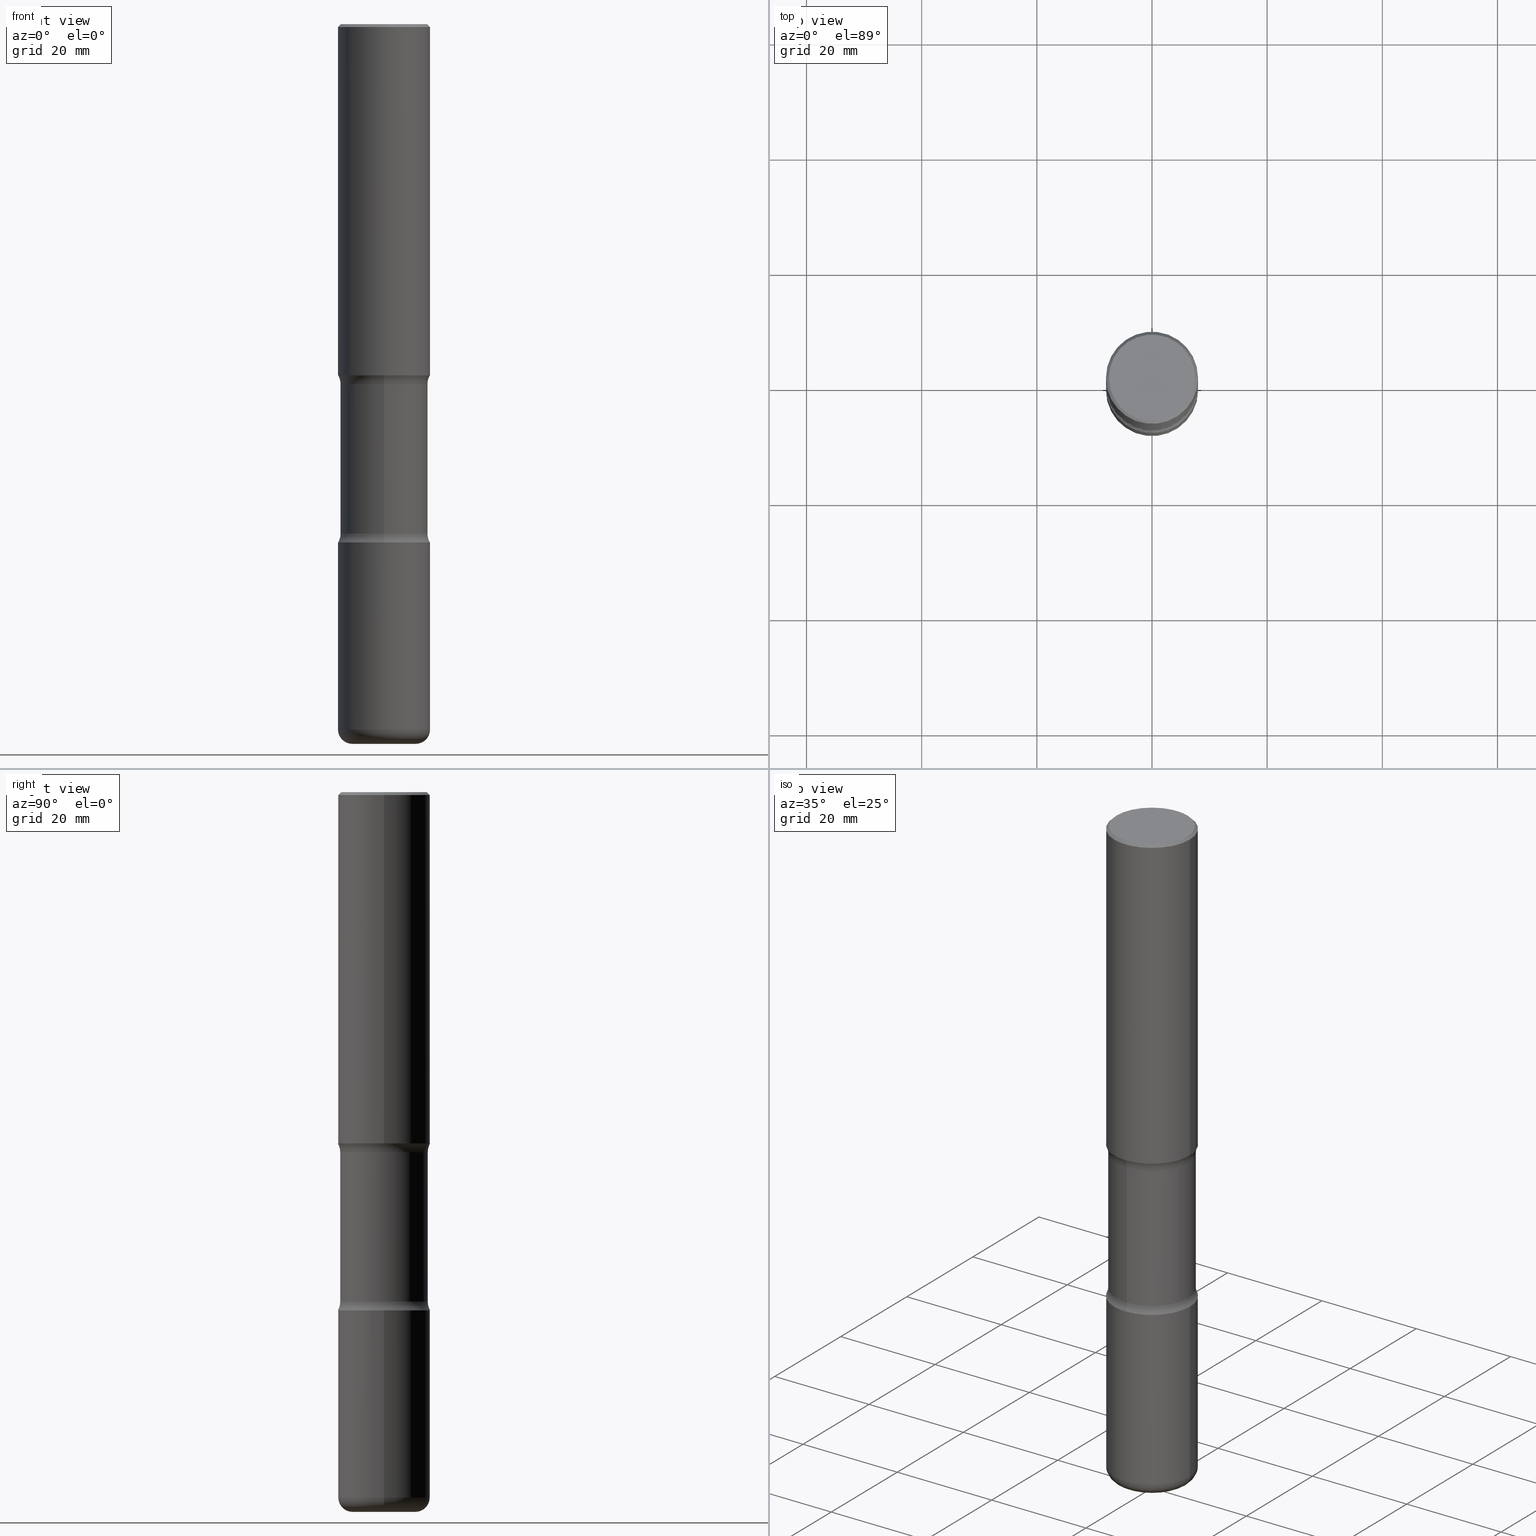
[diagram: canonical four-view strip — front | top / right | iso, engineering-drawing reading convention]
A machine part, canonical four-view strip (front | top / right | iso — engineering-drawing reading convention). The complete STEP part file that produces these views, byte-faithful:
ISO-10303-21;
HEADER;
FILE_DESCRIPTION (( 'STEP AP203' ),
    '1' );
FILE_NAME ('47728.STEP',
    '2024-03-02T08:01:05',
    ( '' ),
    ( '' ),
    'SwSTEP 2.0',
    'SolidWorks 2023',
    '' );
FILE_SCHEMA (( 'CONFIG_CONTROL_DESIGN' ));
ENDSEC;

DATA;
#1 = DATE_AND_TIME ( #225, #57 ) ;
#2 = LENGTH_MEASURE_WITH_UNIT ( LENGTH_MEASURE( 0.02539999999999999897 ), #184 );
#3 = AXIS2_PLACEMENT_3D ( 'NONE', #388, #259, #338 ) ;
#4 = EDGE_CURVE ( 'NONE', #560, #476, #472, .T. ) ;
#5 = VECTOR ( 'NONE', #98, 39.37007874015748143 ) ;
#6 = ORIENTED_EDGE ( 'NONE', *, *, #440, .F. ) ;
#7 = CARTESIAN_POINT ( 'NONE',  ( 5.793698634558417209E-29, -8.498759905613550858E-15, -2.401600000000000623 ) ) ;
#8 = ADVANCED_FACE ( 'NONE', ( #447 ), #330, .F. ) ;
#9 = CARTESIAN_POINT ( 'NONE',  ( 0.3149500000000000077, -2.199284095337289871E-15, 1.535751875536930130E-29 ) ) ;
#10 = ORIENTED_EDGE ( 'NONE', *, *, #533, .T. ) ;
#11 = DIRECTION ( 'NONE',  ( 6.982962677686265922E-15, 1.000000000000000000, -3.469564049740288825E-15 ) ) ;
#12 = DIRECTION ( 'NONE',  ( -2.445468806185136877E-29, 3.491481338843145188E-15, 1.000000000000000000 ) ) ;
#13 = DIRECTION ( 'NONE',  ( 1.000000000000000000, -6.860497997771530774E-15, 4.842017608840796657E-29 ) ) ;
#14 = AXIS2_PLACEMENT_3D ( 'NONE', #94, #469, #91 ) ;
#15 = CARTESIAN_POINT ( 'NONE',  ( -2.160713844398058954E-15, -0.3149500000000126643, -3.543299999999999894 ) ) ;
#16 = ADVANCED_FACE ( 'NONE', ( #366 ), #322, .F. ) ;
#17 = SHAPE_DEFINITION_REPRESENTATION ( #56, #194 ) ;
#18 = CARTESIAN_POINT ( 'NONE',  ( 1.179425150535028983E-28, -1.683906534910660256E-14, -4.822899999999998855 ) ) ;
#19 = CC_DESIGN_PERSON_AND_ORGANIZATION_ASSIGNMENT ( #63, #116, ( #282 ) ) ;
#20 = VERTEX_POINT ( 'NONE', #554 ) ;
#21 = PERSON_AND_ORGANIZATION_ROLE ( 'design_supplier' ) ;
#22 = DIRECTION ( 'NONE',  ( -2.445468806185136877E-29, 3.491481338843145188E-15, 1.000000000000000000 ) ) ;
#23 = DIRECTION ( 'NONE',  ( 2.514961011121466661E-29, -3.391964546123646738E-15, -1.000000000000000000 ) ) ;
#24 = EDGE_CURVE ( 'NONE', #496, #136, #558, .T. ) ;
#25 = CLOSED_SHELL ( 'NONE', ( #331, #536, #298, #343, #380, #42 ) ) ;
#26 = AXIS2_PLACEMENT_3D ( 'NONE', #527, #524, #336 ) ;
#27 = VERTEX_POINT ( 'NONE', #135 ) ;
#28 = LINE ( 'NONE', #498, #145 ) ;
#29 = EDGE_CURVE ( 'NONE', #294, #496, #103, .T. ) ;
#30 = ORIENTED_EDGE ( 'NONE', *, *, #493, .T. ) ;
#31 = ORIENTED_EDGE ( 'NONE', *, *, #374, .T. ) ;
#32 = DIRECTION ( 'NONE',  ( -2.445468806185136877E-29, 3.491481338843145188E-15, 1.000000000000000000 ) ) ;
#33 = ORIENTED_EDGE ( 'NONE', *, *, #202, .F. ) ;
#34 = EDGE_LOOP ( 'NONE', ( #164, #523 ) ) ;
#35 = CARTESIAN_POINT ( 'NONE',  ( 5.873037884934225470E-29, -8.385141583365698841E-15, -2.401600000000000623 ) ) ;
#36 = VERTEX_POINT ( 'NONE', #205 ) ;
#37 = DIRECTION ( 'NONE',  ( 7.105427357601001859E-15, 1.000000000000000000, -3.491481338843145583E-15 ) ) ;
#38 = EDGE_LOOP ( 'NONE', ( #67, #401, #318, #386 ) ) ;
#39 = AXIS2_PLACEMENT_3D ( 'NONE', #465, #428, #463 ) ;
#40 = APPROVAL_PERSON_ORGANIZATION ( #221, #126, #439 ) ;
#41 = CARTESIAN_POINT ( 'NONE',  ( 4.890937612370289799E-31, -6.982962677686315028E-17, -0.02000000000000006981 ) ) ;
#42 = ADVANCED_FACE ( 'NONE', ( #340 ), #293, .T. ) ;
#43 = VERTEX_POINT ( 'NONE', #15 ) ;
#44 = DIRECTION ( 'NONE',  ( 1.000000000000000000, -6.982962677686265922E-15, 4.876176775795935793E-29 ) ) ;
#45 = CARTESIAN_POINT ( 'NONE',  ( 2.199284095337378223E-15, 0.3149499999999879063, -3.543300000000002115 ) ) ;
#46 = EDGE_CURVE ( 'NONE', #36, #107, #481, .T. ) ;
#47 = EDGE_CURVE ( 'NONE', #365, #43, #545, .T. ) ;
#48 = AXIS2_PLACEMENT_3D ( 'NONE', #531, #462, #242 ) ;
#49 = CARTESIAN_POINT ( 'NONE',  ( -0.3149500000000002853, -1.236736124223832383E-14, -3.543300000000000782 ) ) ;
#50 = CC_DESIGN_APPROVAL ( #228, ( #204 ) ) ;
#51 = ORIENTED_EDGE ( 'NONE', *, *, #46, .T. ) ;
#52 = PERSON_AND_ORGANIZATION_ROLE ( 'design_owner' ) ;
#53 =( NAMED_UNIT ( * ) SI_UNIT ( $, .STERADIAN. ) SOLID_ANGLE_UNIT ( ) );
#54 = DIRECTION ( 'NONE',  ( 2.514961011121466661E-29, -3.391964546123646738E-15, -1.000000000000000000 ) ) ;
#55 = AXIS2_PLACEMENT_3D ( 'NONE', #110, #200, #283 ) ;
#56 = PRODUCT_DEFINITION_SHAPE ( 'NONE', 'NONE',  #204 ) ;
#57 = LOCAL_TIME ( 3, 1, 5.000000000000000000, #449 ) ;
#58 = PERSON_AND_ORGANIZATION ( #517, #383 ) ;
#59 = DIRECTION ( 'NONE',  ( -6.982962677686265922E-15, -1.000000000000000000, 3.391964546123647133E-15 ) ) ;
#60 = PERSON_AND_ORGANIZATION_ROLE ( 'creator' ) ;
#61 = CARTESIAN_POINT ( 'NONE',  ( 2.199284095337349824E-15, 0.3149499999999919031, -2.401600000000001511 ) ) ;
#62 = ORIENTED_EDGE ( 'NONE', *, *, #305, .T. ) ;
#63 = PERSON_AND_ORGANIZATION ( #517, #383 ) ;
#64 = DIRECTION ( 'NONE',  ( 1.000000000000000000, -6.982962677686256455E-15, 0.000000000000000000 ) ) ;
#65 = CYLINDRICAL_SURFACE ( 'NONE', #453, 0.3149500000000002853 ) ;
#66 = CIRCLE ( 'NONE', #3, 0.2992000000000000215 ) ;
#67 = ORIENTED_EDGE ( 'NONE', *, *, #442, .F. ) ;
#68 = CONICAL_SURFACE ( 'NONE', #237, 0.3149499999999998967, 0.7853981633974460586 ) ;
#69 = CALENDAR_DATE ( 2024, 2, 3 ) ;
#70 = FACE_OUTER_BOUND ( 'NONE', #266, .T. ) ;
#71 = DIRECTION ( 'NONE',  ( 1.000000000000000000, -6.982962677686267499E-15, 4.876176775795936353E-29 ) ) ;
#72 = ADVANCED_FACE ( 'NONE', ( #500 ), #247, .T. ) ;
#73 = APPROVAL_DATE_TIME ( #287, #185 ) ;
#74 = EDGE_CURVE ( 'NONE', #79, #243, #306, .T. ) ;
#75 = DIRECTION ( 'NONE',  ( 2.438088387897960049E-29, -3.491481338843145188E-15, -1.000000000000000000 ) ) ;
#76 = TOROIDAL_SURFACE ( 'NONE', #269, 0.4242000000000002435, 0.1250000000000001943 ) ;
#77 = CIRCLE ( 'NONE', #211, 0.1250000000000000555 ) ;
#78 = DIRECTION ( 'NONE',  ( -2.445468806185136597E-29, 3.491481338843145583E-15, 1.000000000000000000 ) ) ;
#79 = VERTEX_POINT ( 'NONE', #186 ) ;
#80 = ORIENTED_EDGE ( 'NONE', *, *, #475, .F. ) ;
#81 = EDGE_LOOP ( 'NONE', ( #313, #254, #489, #321 ) ) ;
#82 = CARTESIAN_POINT ( 'NONE',  ( 8.516490035935592115E-29, -1.215929066758317818E-14, -3.482559259964995935 ) ) ;
#83 = DIRECTION ( 'NONE',  ( 1.000000000000000000, -6.982962677686268288E-15, 0.000000000000000000 ) ) ;
#84 = CARTESIAN_POINT ( 'NONE',  ( 1.203488563587890921E-28, -1.718262711284876708E-14, -4.921299999999998676 ) ) ;
#85 = CARTESIAN_POINT ( 'NONE',  ( 5.946459227533120264E-29, -8.704790342317601483E-15, -2.462340740035005471 ) ) ;
#86 = ADVANCED_FACE ( 'NONE', ( #319 ), #506, .T. ) ;
#87 = EDGE_CURVE ( 'NONE', #43, #27, #362, .T. ) ;
#88 = AXIS2_PLACEMENT_3D ( 'NONE', #214, #507, #423 ) ;
#89 = APPROVAL_PERSON_ORGANIZATION ( #106, #228, #171 ) ;
#90 = DIRECTION ( 'NONE',  ( 2.514961011121466661E-29, -3.391964546123646738E-15, -1.000000000000000000 ) ) ;
#91 = DIRECTION ( 'NONE',  ( -1.000000000000000000, 6.982962677686265922E-15, -4.876176775795935793E-29 ) ) ;
#92 = UNCERTAINTY_MEASURE_WITH_UNIT (LENGTH_MEASURE( 1.000000000000000082E-05 ), #273, 'distance_accuracy_value', 'NONE');
#93 = PRODUCT_RELATED_PRODUCT_CATEGORY ( 'detail', '', ( #226 ) ) ;
#94 = CARTESIAN_POINT ( 'NONE',  ( 2.059624841783563274E-15, 0.2949499999999998789, -1.023409652156634744E-15 ) ) ;
#95 = EDGE_LOOP ( 'NONE', ( #361, #256, #552, #503 ) ) ;
#96 = AXIS2_PLACEMENT_3D ( 'NONE', #549, #508, #486 ) ;
#97 = CIRCLE ( 'NONE', #357, 0.1250000000000001943 ) ;
#98 = DIRECTION ( 'NONE',  ( 0.7071067811865459074, -7.319954787623249734E-15, -0.7071067811865491270 ) ) ;
#99 = VECTOR ( 'NONE', #514, 39.37007874015748143 ) ;
#100 = DIRECTION ( 'NONE',  ( -6.982962677686267499E-15, -1.000000000000000000, 0.000000000000000000 ) ) ;
#101 = EDGE_LOOP ( 'NONE', ( #223, #172, #399, #213 ) ) ;
#102 = ORIENTED_EDGE ( 'NONE', *, *, #156, .F. ) ;
#103 = CIRCLE ( 'NONE', #208, 0.2949499999999998789 ) ;
#104 = AXIS2_PLACEMENT_3D ( 'NONE', #35, #495, #117 ) ;
#105 = VECTOR ( 'NONE', #32, 39.37007874015748143 ) ;
#106 = PERSON_AND_ORGANIZATION ( #517, #383 ) ;
#107 = VERTEX_POINT ( 'NONE', #61 ) ;
#108 = EDGE_CURVE ( 'NONE', #476, #519, #289, .T. ) ;
#109 = CARTESIAN_POINT ( 'NONE',  ( 4.372705008681123089E-29, -1.851821897664530113E-14, -3.543300000000000338 ) ) ;
#110 = CARTESIAN_POINT ( 'NONE',  ( 5.926195507050082324E-29, -8.733809143388656122E-15, -2.462340740035005471 ) ) ;
#111 = CARTESIAN_POINT ( 'NONE',  ( 4.890937612370289799E-31, -6.982962677686315028E-17, -0.02000000000000006981 ) ) ;
#112 = AXIS2_PLACEMENT_3D ( 'NONE', #538, #457, #376 ) ;
#113 = CIRCLE ( 'NONE', #373, 0.2165500000000004088 ) ;
#114 = LINE ( 'NONE', #121, #105 ) ;
#115 = ORIENTED_EDGE ( 'NONE', *, *, #156, .T. ) ;
#116 = PERSON_AND_ORGANIZATION_ROLE ( 'creator' ) ;
#117 = DIRECTION ( 'NONE',  ( 6.982962677686265922E-15, 1.000000000000000000, -3.391964546123647133E-15 ) ) ;
#118 = PLANE ( 'NONE',  #516 ) ;
#119 = ORIENTED_EDGE ( 'NONE', *, *, #502, .T. ) ;
#120 = DIRECTION ( 'NONE',  ( -2.445468806185136597E-29, 3.491481338843145583E-15, 1.000000000000000000 ) ) ;
#121 = CARTESIAN_POINT ( 'NONE',  ( 0.3149500000000002853, -2.199284095337291843E-15, 1.535751875536931531E-29 ) ) ;
#122 = AXIS2_PLACEMENT_3D ( 'NONE', #512, #173, #199 ) ;
#123 = EDGE_LOOP ( 'NONE', ( #284, #296 ) ) ;
#124 = DIRECTION ( 'NONE',  ( -2.445468806185136597E-29, 3.491481338843145583E-15, 1.000000000000000000 ) ) ;
#125 = ADVANCED_FACE ( 'NONE', ( #413 ), #518, .T. ) ;
#126 = APPROVAL ( #272, 'UNSPECIFIED' ) ;
#127 = DIRECTION ( 'NONE',  ( 1.000000000000000000, -6.982962677686265922E-15, 0.000000000000000000 ) ) ;
#128 = DIRECTION ( 'NONE',  ( 1.000000000000000000, -6.982962677686263555E-15, 0.000000000000000000 ) ) ;
#129 = TOROIDAL_SURFACE ( 'NONE', #444, 0.4242000000000001325, 0.1250000000000000555 ) ;
#130 = LOCAL_TIME ( 3, 1, 5.000000000000000000, #232 ) ;
#131 = CARTESIAN_POINT ( 'NONE',  ( -0.2165500000000004088, -1.530038505481810073E-14, -4.822899999999998855 ) ) ;
#132 = DIRECTION ( 'NONE',  ( -2.445468806185136597E-29, 3.491481338843145583E-15, 1.000000000000000000 ) ) ;
#133 = EDGE_CURVE ( 'NONE', #427, #36, #396, .T. ) ;
#134 = DIRECTION ( 'NONE',  ( -1.000000000000000000, 6.982962677686265922E-15, -4.883557194083112340E-29 ) ) ;
#135 = CARTESIAN_POINT ( 'NONE',  ( -2.106687422665607929E-15, -0.2992000000000121784, -3.482559259964995491 ) ) ;
#136 = VERTEX_POINT ( 'NONE', #301 ) ;
#137 = DATE_AND_TIME ( #354, #130 ) ;
#138 = CIRCLE ( 'NONE', #425, 0.2992000000000000215 ) ;
#139 = ADVANCED_FACE ( 'NONE', ( #258 ), #162, .T. ) ;
#140 = LINE ( 'NONE', #400, #5 ) ;
#141 = MANIFOLD_SOLID_BREP ( 'Body-Move/Copy2[1]', #430 ) ;
#142 = CARTESIAN_POINT ( 'NONE',  ( 0.000000000000000000, 0.000000000000000000, 0.000000000000000000 ) ) ;
#143 = ORIENTED_EDGE ( 'NONE', *, *, #334, .F. ) ;
#144 = CARTESIAN_POINT ( 'NONE',  ( 2.962172767874574494E-15, 0.4241999999999914173, -2.462340740035007247 ) ) ;
#145 = VECTOR ( 'NONE', #22, 39.37007874015748143 ) ;
#146 = VERTEX_POINT ( 'NONE', #285 ) ;
#147 = LINE ( 'NONE', #325, #168 ) ;
#148 = DATE_AND_TIME ( #497, #190 ) ;
#149 = DIRECTION ( 'NONE',  ( -2.445468806185136597E-29, 3.491481338843145583E-15, 1.000000000000000000 ) ) ;
#150 = AXIS2_PLACEMENT_3D ( 'NONE', #316, #231, #262 ) ;
#151 = ORIENTED_EDGE ( 'NONE', *, *, #475, .T. ) ;
#152 = CC_DESIGN_APPROVAL ( #185, ( #198 ) ) ;
#153 = DIRECTION ( 'NONE',  ( -2.445468806185136597E-29, 3.491481338843145583E-15, 1.000000000000000000 ) ) ;
#154 = EDGE_LOOP ( 'NONE', ( #438, #458, #62, #143 ) ) ;
#155 = FACE_OUTER_BOUND ( 'NONE', #101, .T. ) ;
#156 = EDGE_CURVE ( 'NONE', #496, #294, #511, .T. ) ;
#157 = AXIS2_PLACEMENT_3D ( 'NONE', #448, #187, #11 ) ;
#158 = CIRCLE ( 'NONE', #491, 0.3149499999999998967 ) ;
#159 = ORIENTED_EDGE ( 'NONE', *, *, #191, .F. ) ;
#160 = APPLICATION_CONTEXT ( 'configuration controlled 3d designs of mechanical parts and assemblies' ) ;
#161 = DIRECTION ( 'NONE',  ( 1.000000000000000000, -6.982962677686260400E-15, 0.000000000000000000 ) ) ;
#162 = CYLINDRICAL_SURFACE ( 'NONE', #122, 0.2992000000000000215 ) ;
#163 = DIRECTION ( 'NONE',  ( 2.514961011121466661E-29, -3.391964546123646738E-15, -1.000000000000000000 ) ) ;
#164 = ORIENTED_EDGE ( 'NONE', *, *, #502, .F. ) ;
#165 = DIRECTION ( 'NONE',  ( -1.000000000000000000, 7.105427357600994759E-15, 0.000000000000000000 ) ) ;
#166 = EDGE_CURVE ( 'NONE', #560, #20, #224, .T. ) ;
#167 = ORIENTED_EDGE ( 'NONE', *, *, #402, .T. ) ;
#168 = VECTOR ( 'NONE', #196, 39.37007874015748143 ) ;
#169 = CARTESIAN_POINT ( 'NONE',  ( 1.203488563587890921E-28, -1.718262711284876708E-14, -4.921299999999998676 ) ) ;
#170 = CARTESIAN_POINT ( 'NONE',  ( -0.3149499999999998967, 2.129454468560425784E-15, -0.02000000000000006981 ) ) ;
#171 = APPROVAL_ROLE ( '' ) ;
#172 = ORIENTED_EDGE ( 'NONE', *, *, #395, .T. ) ;
#173 = DIRECTION ( 'NONE',  ( 2.514961011121466661E-29, -3.391964546123646738E-15, -1.000000000000000000 ) ) ;
#174 = EDGE_LOOP ( 'NONE', ( #159, #264, #51, #432 ) ) ;
#175 = APPROVAL_DATE_TIME ( #1, #228 ) ;
#176 = ADVANCED_FACE ( 'NONE', ( #241 ), #65, .T. ) ;
#177 = EDGE_CURVE ( 'NONE', #519, #441, #28, .T. ) ;
#178 = ORIENTED_EDGE ( 'NONE', *, *, #74, .T. ) ;
#179 = AXIS2_PLACEMENT_3D ( 'NONE', #131, #37, #165 ) ;
#180 = CARTESIAN_POINT ( 'NONE',  ( 0.000000000000000000, 0.000000000000000000, 0.000000000000000000 ) ) ;
#181 = AXIS2_PLACEMENT_3D ( 'NONE', #215, #347, #267 ) ;
#182 = ADVANCED_FACE ( 'NONE', ( #372 ), #299, .F. ) ;
#183 = ORIENTED_EDGE ( 'NONE', *, *, #522, .F. ) ;
#184 =( LENGTH_UNIT ( ) NAMED_UNIT ( * ) SI_UNIT ( $, .METRE. ) );
#185 = APPROVAL ( #406, 'UNSPECIFIED' ) ;
#186 = CARTESIAN_POINT ( 'NONE',  ( 0.3149500000000001743, -1.058442567870299029E-14, -2.401600000000000623 ) ) ;
#187 = DIRECTION ( 'NONE',  ( 2.514961011121466661E-29, -3.391964546123646738E-15, -1.000000000000000000 ) ) ;
#188 = AXIS2_PLACEMENT_3D ( 'NONE', #375, #450, #64 ) ;
#189 = CIRCLE ( 'NONE', #39, 0.3149500000000001743 ) ;
#190 = LOCAL_TIME ( 3, 1, 5.000000000000000000, #416 ) ;
#191 = EDGE_CURVE ( 'NONE', #427, #407, #371, .T. ) ;
#192 = CARTESIAN_POINT ( 'NONE',  ( 0.000000000000000000, 0.000000000000000000, 0.000000000000000000 ) ) ;
#193 = PLANE ( 'NONE',  #349 ) ;
#194 = ADVANCED_BREP_SHAPE_REPRESENTATION ( '47728', ( #141, #488, #309, #557 ), #329 ) ;
#195 = SECURITY_CLASSIFICATION_LEVEL ( 'unclassified' ) ;
#196 = DIRECTION ( 'NONE',  ( -2.445468806185136877E-29, 3.491481338843145188E-15, 1.000000000000000000 ) ) ;
#197 = CIRCLE ( 'NONE', #275, 0.3149500000000003408 ) ;
#198 = SECURITY_CLASSIFICATION ( '', '', #195 ) ;
#199 = DIRECTION ( 'NONE',  ( 6.982962677686265922E-15, 1.000000000000000000, -3.652203200085913145E-15 ) ) ;
#200 = DIRECTION ( 'NONE',  ( 2.514961011121466661E-29, -3.391964546123646738E-15, -1.000000000000000000 ) ) ;
#201 = ORIENTED_EDGE ( 'NONE', *, *, #166, .F. ) ;
#202 = EDGE_CURVE ( 'NONE', #346, #79, #461, .T. ) ;
#203 = ADVANCED_FACE ( 'NONE', ( #412 ), #129, .F. ) ;
#204 = PRODUCT_DEFINITION ( 'UNKNOWN', '', #282, #360 ) ;
#205 = CARTESIAN_POINT ( 'NONE',  ( -2.160713844398088142E-15, -0.3149500000000088895, -2.401599999999999291 ) ) ;
#206 = ORIENTED_EDGE ( 'NONE', *, *, #353, .T. ) ;
#207 = CARTESIAN_POINT ( 'NONE',  ( 2.089302433163852292E-15, 0.2991999999999829796, -4.921300000000002228 ) ) ;
#208 = AXIS2_PLACEMENT_3D ( 'NONE', #219, #132, #345 ) ;
#209 = EDGE_LOOP ( 'NONE', ( #183, #102, #326, #30 ) ) ;
#210 = AXIS2_PLACEMENT_3D ( 'NONE', #279, #281, #501 ) ;
#211 = AXIS2_PLACEMENT_3D ( 'NONE', #144, #314, #100 ) ;
#212 = FACE_OUTER_BOUND ( 'NONE', #393, .T. ) ;
#213 = ORIENTED_EDGE ( 'NONE', *, *, #4, .F. ) ;
#214 = CARTESIAN_POINT ( 'NONE',  ( 8.665029620955796311E-29, -1.237136582792292023E-14, -3.543300000000000782 ) ) ;
#215 = CARTESIAN_POINT ( 'NONE',  ( 8.665029620955796311E-29, -1.237136582792292023E-14, -3.543300000000000782 ) ) ;
#216 = AXIS2_PLACEMENT_3D ( 'NONE', #377, #342, #128 ) ;
#217 = CARTESIAN_POINT ( 'NONE',  ( 0.3149500000000003963, -1.903834944444389400E-14, -4.822899999999998855 ) ) ;
#218 = ORIENTED_EDGE ( 'NONE', *, *, #4, .T. ) ;
#219 = CARTESIAN_POINT ( 'NONE',  ( -3.131554243005659264E-46, 4.471029511141341874E-32, 1.280553747030123384E-17 ) ) ;
#220 = EDGE_LOOP ( 'NONE', ( #278, #33 ) ) ;
#221 = PERSON_AND_ORGANIZATION ( #517, #383 ) ;
#222 = CC_DESIGN_DATE_AND_TIME_ASSIGNMENT ( #137, #356, ( #204 ) ) ;
#223 = ORIENTED_EDGE ( 'NONE', *, *, #166, .T. ) ;
#224 = CIRCLE ( 'NONE', #431, 0.2165500000000004088 ) ;
#225 = CALENDAR_DATE ( 2024, 2, 3 ) ;
#226 = PRODUCT ( '47728', '47728', '', ( #312 ) ) ;
#227 = DIRECTION ( 'NONE',  ( 6.860497997771530774E-15, 1.000000000000000000, 0.000000000000000000 ) ) ;
#228 = APPROVAL ( #478, 'UNSPECIFIED' ) ;
#229 = ORIENTED_EDGE ( 'NONE', *, *, #202, .T. ) ;
#230 = EDGE_CURVE ( 'NONE', #346, #136, #147, .T. ) ;
#231 = DIRECTION ( 'NONE',  ( 1.000000000000000000, -6.860497997771530774E-15, 4.842017608840796657E-29 ) ) ;
#232 = COORDINATED_UNIVERSAL_TIME_OFFSET ( 5, 0, .BEHIND. ) ;
#233 = APPROVAL_DATE_TIME ( #410, #126 ) ;
#234 = CIRCLE ( 'NONE', #179, 0.09840000000000007074 ) ;
#235 = ORIENTED_EDGE ( 'NONE', *, *, #363, .T. ) ;
#236 = CARTESIAN_POINT ( 'NONE',  ( 0.2949499999999998789, -2.127023677808859286E-15, 1.280553747031587399E-17 ) ) ;
#237 = AXIS2_PLACEMENT_3D ( 'NONE', #276, #277, #404 ) ;
#238 = EDGE_LOOP ( 'NONE', ( #387, #229, #178, #253 ) ) ;
#239 = DIRECTION ( 'NONE',  ( 1.000000000000000000, -6.982962677686267499E-15, 4.876053491004736589E-29 ) ) ;
#240 = COORDINATED_UNIVERSAL_TIME_OFFSET ( 5, 0, .BEHIND. ) ;
#241 = FACE_OUTER_BOUND ( 'NONE', #154, .T. ) ;
#242 = DIRECTION ( 'NONE',  ( 1.000000000000000000, -6.982962677686265922E-15, 0.000000000000000000 ) ) ;
#243 = VERTEX_POINT ( 'NONE', #456 ) ;
#244 = DATE_TIME_ROLE ( 'classification_date' ) ;
#245 = VECTOR ( 'NONE', #434, 39.37007874015748143 ) ;
#246 = CYLINDRICAL_SURFACE ( 'NONE', #482, 0.3149500000000000077 ) ;
#247 = TOROIDAL_SURFACE ( 'NONE', #382, 0.2165500000000004088, 0.09840000000000008462 ) ;
#248 = APPROVAL_PERSON_ORGANIZATION ( #540, #185, #537 ) ;
#249 = ADVANCED_FACE ( 'NONE', ( #155 ), #555, .T. ) ;
#250 = LOCAL_TIME ( 3, 1, 5.000000000000000000, #455 ) ;
#251 = PERSON_AND_ORGANIZATION ( #517, #383 ) ;
#252 = DIRECTION ( 'NONE',  ( 1.000000000000000000, -6.982962677686266711E-15, 4.876176775795936353E-29 ) ) ;
#253 = ORIENTED_EDGE ( 'NONE', *, *, #493, .F. ) ;
#254 = ORIENTED_EDGE ( 'NONE', *, *, #177, .T. ) ;
#255 = DIRECTION ( 'NONE',  ( 1.000000000000000000, -6.982962677686265922E-15, 0.000000000000000000 ) ) ;
#256 = ORIENTED_EDGE ( 'NONE', *, *, #230, .T. ) ;
#257 = EDGE_CURVE ( 'NONE', #519, #476, #197, .T. ) ;
#258 = FACE_OUTER_BOUND ( 'NONE', #550, .T. ) ;
#259 = DIRECTION ( 'NONE',  ( 2.514961011121466661E-29, -3.391964546123646738E-15, -1.000000000000000000 ) ) ;
#260 = CIRCLE ( 'NONE', #88, 0.3149500000000002853 ) ;
#261 = AXIS2_PLACEMENT_3D ( 'NONE', #41, #124, #255 ) ;
#262 = DIRECTION ( 'NONE',  ( 6.860497997771530774E-15, 1.000000000000000000, 0.000000000000000000 ) ) ;
#263 = CARTESIAN_POINT ( 'NONE',  ( 2.089302433163790366E-15, 0.2991999999999913062, -2.462340740035006359 ) ) ;
#264 = ORIENTED_EDGE ( 'NONE', *, *, #133, .T. ) ;
#265 = CARTESIAN_POINT ( 'NONE',  ( 8.512269027981096619E-29, -1.216533539121887276E-14, -3.482559259964996379 ) ) ;
#266 = EDGE_LOOP ( 'NONE', ( #201, #355 ) ) ;
#267 = DIRECTION ( 'NONE',  ( 6.982962677686265922E-15, 1.000000000000000000, -3.469564049740290009E-15 ) ) ;
#268 = ADVANCED_FACE ( 'NONE', ( #337 ), #118, .F. ) ;
#269 = AXIS2_PLACEMENT_3D ( 'NONE', #292, #90, #352 ) ;
#270 = CC_DESIGN_DATE_AND_TIME_ASSIGNMENT ( #148, #244, ( #198 ) ) ;
#271 = FACE_OUTER_BOUND ( 'NONE', #452, .T. ) ;
#272 = APPROVAL_STATUS ( 'not_yet_approved' ) ;
#273 =( CONVERSION_BASED_UNIT ( 'INCH', #2 ) LENGTH_UNIT ( ) NAMED_UNIT ( #521 ) );
#274 = EDGE_LOOP ( 'NONE', ( #409, #290, #464, #119 ) ) ;
#275 = AXIS2_PLACEMENT_3D ( 'NONE', #18, #332, #541 ) ;
#276 = CARTESIAN_POINT ( 'NONE',  ( 4.890937612370289799E-31, -6.982962677686315028E-17, -0.02000000000000006981 ) ) ;
#277 = DIRECTION ( 'NONE',  ( 2.445468806185136597E-29, -3.491481338843145583E-15, -1.000000000000000000 ) ) ;
#278 = ORIENTED_EDGE ( 'NONE', *, *, #350, .F. ) ;
#279 = CARTESIAN_POINT ( 'NONE',  ( 1.179425150535028983E-28, -1.683906534910660256E-14, -4.822899999999998855 ) ) ;
#280 = CC_DESIGN_PERSON_AND_ORGANIZATION_ASSIGNMENT ( #529, #534, ( #198 ) ) ;
#281 = DIRECTION ( 'NONE',  ( -2.445468806185136597E-29, 3.491481338843145583E-15, 1.000000000000000000 ) ) ;
#282 = PRODUCT_DEFINITION_FORMATION_WITH_SPECIFIED_SOURCE ( 'ANY', '', #226, .NOT_KNOWN. ) ;
#283 = DIRECTION ( 'NONE',  ( 6.982962677686265922E-15, 1.000000000000000000, -3.391964546123646738E-15 ) ) ;
#284 = ORIENTED_EDGE ( 'NONE', *, *, #47, .T. ) ;
#285 = CARTESIAN_POINT ( 'NONE',  ( 0.3149500000000002853, -1.457064992326021168E-14, -3.543300000000000782 ) ) ;
#286 = CARTESIAN_POINT ( 'NONE',  ( 4.372705008681123089E-29, -1.851821897664530113E-14, -3.543300000000000338 ) ) ;
#287 = DATE_AND_TIME ( #370, #250 ) ;
#288 = CARTESIAN_POINT ( 'NONE',  ( 0.000000000000000000, 0.000000000000000000, 0.000000000000000000 ) ) ;
#289 = CIRCLE ( 'NONE', #525, 0.3149500000000003408 ) ;
#290 = ORIENTED_EDGE ( 'NONE', *, *, #363, .F. ) ;
#291 = CARTESIAN_POINT ( 'NONE',  ( 1.213064589428117588E-28, -1.704549297248130466E-14, -4.921300000000000452 ) ) ;
#292 = CARTESIAN_POINT ( 'NONE',  ( 8.516490035935592115E-29, -1.215929066758317818E-14, -3.482559259964995935 ) ) ;
#293 = CYLINDRICAL_SURFACE ( 'NONE', #96, 0.3149500000000000077 ) ;
#294 = VERTEX_POINT ( 'NONE', #236 ) ;
#295 = DIRECTION ( 'NONE',  ( 6.982962677686265922E-15, 1.000000000000000000, -3.391964546123646344E-15 ) ) ;
#296 = ORIENTED_EDGE ( 'NONE', *, *, #442, .T. ) ;
#297 = DIRECTION ( 'NONE',  ( -2.445468806185136597E-29, 3.491481338843145583E-15, 1.000000000000000000 ) ) ;
#298 = ADVANCED_FACE ( 'NONE', ( #368 ), #339, .T. ) ;
#299 = TOROIDAL_SURFACE ( 'NONE', #55, 0.4242000000000001325, 0.1250000000000000555 ) ;
#300 = VECTOR ( 'NONE', #429, 39.37007874015748143 ) ;
#301 = CARTESIAN_POINT ( 'NONE',  ( -0.3149499999999998967, 2.129454468560425784E-15, -0.02000000000000006981 ) ) ;
#302 = LINE ( 'NONE', #207, #300 ) ;
#303 = DIRECTION ( 'NONE',  ( 6.982962677686265922E-15, 1.000000000000000000, -3.652203200085913145E-15 ) ) ;
#304 = ADVANCED_FACE ( 'NONE', ( #70 ), #193, .T. ) ;
#305 = EDGE_CURVE ( 'NONE', #476, #146, #114, .T. ) ;
#306 = LINE ( 'NONE', #9, #504 ) ;
#307 = DIRECTION ( 'NONE',  ( 1.000000000000000000, 0.000000000000000000, 0.000000000000000000 ) ) ;
#308 = AXIS2_PLACEMENT_3D ( 'NONE', #111, #487, #544 ) ;
#309 = MANIFOLD_SOLID_BREP ( 'Body-Move/Copy2[4]', #348 ) ;
#310 = DIRECTION ( 'NONE',  ( 0.000000000000000000, 0.000000000000000000, 1.000000000000000000 ) ) ;
#311 = DIRECTION ( 'NONE',  ( 1.000000000000000000, -6.982962677686265133E-15, 4.883557194083112901E-29 ) ) ;
#312 = MECHANICAL_CONTEXT ( 'NONE', #160, 'mechanical' ) ;
#313 = ORIENTED_EDGE ( 'NONE', *, *, #108, .T. ) ;
#314 = DIRECTION ( 'NONE',  ( -1.000000000000000000, 6.982962677686265922E-15, -4.883557194083112340E-29 ) ) ;
#315 = ORIENTED_EDGE ( 'NONE', *, *, #24, .F. ) ;
#316 = CARTESIAN_POINT ( 'NONE',  ( -2.910223250654624775E-15, -0.4242000000000089033, -2.462340740035003694 ) ) ;
#317 = AXIS2_PLACEMENT_3D ( 'NONE', #414, #153, #239 ) ;
#318 = ORIENTED_EDGE ( 'NONE', *, *, #384, .T. ) ;
#319 = FACE_OUTER_BOUND ( 'NONE', #378, .T. ) ;
#320 = APPLICATION_CONTEXT ( 'configuration controlled 3d designs of mechanical parts and assemblies' ) ;
#321 = ORIENTED_EDGE ( 'NONE', *, *, #305, .F. ) ;
#322 = PLANE ( 'NONE',  #415 ) ;
#323 = ORIENTED_EDGE ( 'NONE', *, *, #522, .T. ) ;
#324 = ORIENTED_EDGE ( 'NONE', *, *, #87, .F. ) ;
#325 = CARTESIAN_POINT ( 'NONE',  ( -0.3149500000000000077, 2.237854346276435590E-15, -1.549218606675782676E-29 ) ) ;
#326 = ORIENTED_EDGE ( 'NONE', *, *, #24, .T. ) ;
#327 = CIRCLE ( 'NONE', #216, 0.3149500000000002853 ) ;
#328 = FACE_OUTER_BOUND ( 'NONE', #95, .T. ) ;
#329 =( GEOMETRIC_REPRESENTATION_CONTEXT ( 3 ) GLOBAL_UNCERTAINTY_ASSIGNED_CONTEXT ( ( #92 ) ) GLOBAL_UNIT_ASSIGNED_CONTEXT ( ( #273, #436, #53 ) ) REPRESENTATION_CONTEXT ( 'NONE', 'WORKASPACE' ) );
#330 = PLANE ( 'NONE',  #104 ) ;
#331 = ADVANCED_FACE ( 'NONE', ( #328 ), #246, .T. ) ;
#332 = DIRECTION ( 'NONE',  ( -2.445468806185136597E-29, 3.491481338843145583E-15, 1.000000000000000000 ) ) ;
#333 = ADVANCED_FACE ( 'NONE', ( #419 ), #76, .F. ) ;
#334 = EDGE_CURVE ( 'NONE', #441, #146, #327, .T. ) ;
#335 = ORIENTED_EDGE ( 'NONE', *, *, #191, .T. ) ;
#336 = DIRECTION ( 'NONE',  ( 6.982962677686265922E-15, 1.000000000000000000, -3.469564049740290009E-15 ) ) ;
#337 = FACE_OUTER_BOUND ( 'NONE', #528, .T. ) ;
#338 = DIRECTION ( 'NONE',  ( 6.982962677686265922E-15, 1.000000000000000000, -3.652203200085913145E-15 ) ) ;
#339 = CONICAL_SURFACE ( 'NONE', #308, 0.3149499999999998967, 0.7853981633974460586 ) ;
#340 = FACE_OUTER_BOUND ( 'NONE', #238, .T. ) ;
#341 = DIRECTION ( 'NONE',  ( -2.445468806185136597E-29, 3.491481338843145583E-15, 1.000000000000000000 ) ) ;
#342 = DIRECTION ( 'NONE',  ( -2.445468806185136597E-29, 3.491481338843145583E-15, 1.000000000000000000 ) ) ;
#343 = ADVANCED_FACE ( 'NONE', ( #212 ), #391, .F. ) ;
#344 = CARTESIAN_POINT ( 'NONE',  ( -0.2949499999999998789, 2.094539655171994924E-15, 1.280553747028670770E-17 ) ) ;
#345 = DIRECTION ( 'NONE',  ( 1.000000000000000000, -6.982962677686267499E-15, 4.876053491004736589E-29 ) ) ;
#346 = VERTEX_POINT ( 'NONE', #470 ) ;
#347 = DIRECTION ( 'NONE',  ( 2.514961011121466661E-29, -3.391964546123646738E-15, -1.000000000000000000 ) ) ;
#348 = CLOSED_SHELL ( 'NONE', ( #139, #333, #182, #203, #8, #16, #490, #86 ) ) ;
#349 = AXIS2_PLACEMENT_3D ( 'NONE', #451, #75, #369 ) ;
#350 = EDGE_CURVE ( 'NONE', #79, #346, #189, .T. ) ;
#351 = CC_DESIGN_PERSON_AND_ORGANIZATION_ASSIGNMENT ( #58, #52, ( #226 ) ) ;
#352 = DIRECTION ( 'NONE',  ( 6.982962677686265922E-15, 1.000000000000000000, -3.391964546123646344E-15 ) ) ;
#353 = EDGE_CURVE ( 'NONE', #365, #480, #97, .T. ) ;
#354 = CALENDAR_DATE ( 2024, 2, 3 ) ;
#355 = ORIENTED_EDGE ( 'NONE', *, *, #421, .F. ) ;
#356 = DATE_TIME_ROLE ( 'creation_date' ) ;
#357 = AXIS2_PLACEMENT_3D ( 'NONE', #389, #134, #510 ) ;
#358 = APPLICATION_PROTOCOL_DEFINITION ( 'international standard', 'config_control_design', 1994, #160 ) ;
#359 = ORIENTED_EDGE ( 'NONE', *, *, #29, .T. ) ;
#360 = DESIGN_CONTEXT ( 'detailed design', #320, 'design' ) ;
#361 = ORIENTED_EDGE ( 'NONE', *, *, #350, .T. ) ;
#362 = CIRCLE ( 'NONE', #390, 0.1250000000000001943 ) ;
#363 = EDGE_CURVE ( 'NONE', #407, #427, #424, .T. ) ;
#364 = CC_DESIGN_PERSON_AND_ORGANIZATION_ASSIGNMENT ( #251, #21, ( #282 ) ) ;
#365 = VERTEX_POINT ( 'NONE', #45 ) ;
#366 = FACE_OUTER_BOUND ( 'NONE', #123, .T. ) ;
#367 = DIRECTION ( 'NONE',  ( 1.000000000000000000, -6.982962677686267499E-15, 4.876176775795936353E-29 ) ) ;
#368 = FACE_OUTER_BOUND ( 'NONE', #209, .T. ) ;
#369 = DIRECTION ( 'NONE',  ( -1.000000000000000000, 6.982962677686265922E-15, -4.876176775795935793E-29 ) ) ;
#370 = CALENDAR_DATE ( 2024, 2, 3 ) ;
#371 = CIRCLE ( 'NONE', #112, 0.2992000000000000215 ) ;
#372 = FACE_OUTER_BOUND ( 'NONE', #174, .T. ) ;
#373 = AXIS2_PLACEMENT_3D ( 'NONE', #169, #548, #161 ) ;
#374 = EDGE_CURVE ( 'NONE', #243, #136, #158, .T. ) ;
#375 = CARTESIAN_POINT ( 'NONE',  ( 0.2165500000000004088, -1.835122591695956496E-14, -4.822899999999998855 ) ) ;
#376 = DIRECTION ( 'NONE',  ( 6.982962677686265922E-15, 1.000000000000000000, -3.652203200085913145E-15 ) ) ;
#377 = CARTESIAN_POINT ( 'NONE',  ( 8.665029620955796311E-29, -1.237136582792292023E-14, -3.543300000000000782 ) ) ;
#378 = EDGE_LOOP ( 'NONE', ( #485, #335, #151, #435 ) ) ;
#379 = EDGE_LOOP ( 'NONE', ( #392, #530, #218, #543 ) ) ;
#380 = ADVANCED_FACE ( 'NONE', ( #466 ), #385, .F. ) ;
#381 = DIRECTION ( 'NONE',  ( 2.514961011121466661E-29, -3.391964546123646738E-15, -1.000000000000000000 ) ) ;
#382 = AXIS2_PLACEMENT_3D ( 'NONE', #499, #120, #311 ) ;
#383 = ORGANIZATION ( 'UNSPECIFIED', 'UNSPECIFIED', '' ) ;
#384 = EDGE_CURVE ( 'NONE', #27, #480, #66, .T. ) ;
#385 = PLANE ( 'NONE',  #473 ) ;
#386 = ORIENTED_EDGE ( 'NONE', *, *, #353, .F. ) ;
#387 = ORIENTED_EDGE ( 'NONE', *, *, #230, .F. ) ;
#388 = CARTESIAN_POINT ( 'NONE',  ( 8.512269027981096619E-29, -1.216533539121887276E-14, -3.482559259964996379 ) ) ;
#389 = CARTESIAN_POINT ( 'NONE',  ( 2.962172767874600526E-15, 0.4241999999999880866, -3.482559259964997711 ) ) ;
#390 = AXIS2_PLACEMENT_3D ( 'NONE', #403, #13, #227 ) ;
#391 = PLANE ( 'NONE',  #14 ) ;
#392 = ORIENTED_EDGE ( 'NONE', *, *, #395, .F. ) ;
#393 = EDGE_LOOP ( 'NONE', ( #115, #359 ) ) ;
#394 = CARTESIAN_POINT ( 'NONE',  ( -0.3149500000000003963, -1.460121100283016342E-14, -4.822899999999998855 ) ) ;
#395 = EDGE_CURVE ( 'NONE', #20, #519, #234, .T. ) ;
#396 = CIRCLE ( 'NONE', #150, 0.1250000000000000555 ) ;
#397 = CC_DESIGN_APPROVAL ( #126, ( #282 ) ) ;
#398 = PERSON_AND_ORGANIZATION ( #517, #383 ) ;
#399 = ORIENTED_EDGE ( 'NONE', *, *, #108, .F. ) ;
#400 = CARTESIAN_POINT ( 'NONE',  ( 0.3149499999999998967, -2.230543471175006266E-15, -0.02000000000000006981 ) ) ;
#401 = ORIENTED_EDGE ( 'NONE', *, *, #87, .T. ) ;
#402 = EDGE_CURVE ( 'NONE', #146, #441, #260, .T. ) ;
#403 = CARTESIAN_POINT ( 'NONE',  ( -2.910223250654599532E-15, -0.4242000000000124005, -3.482559259964994158 ) ) ;
#404 = DIRECTION ( 'NONE',  ( -1.000000000000000000, 6.982962677686265922E-15, 0.000000000000000000 ) ) ;
#405 = AXIS2_PLACEMENT_3D ( 'NONE', #85, #381, #426 ) ;
#406 = APPROVAL_STATUS ( 'not_yet_approved' ) ;
#407 = VERTEX_POINT ( 'NONE', #263 ) ;
#408 = CARTESIAN_POINT ( 'NONE',  ( 5.926195507050082324E-29, -8.733809143388656122E-15, -2.462340740035005471 ) ) ;
#409 = ORIENTED_EDGE ( 'NONE', *, *, #133, .F. ) ;
#410 = DATE_AND_TIME ( #69, #445 ) ;
#411 = DIRECTION ( 'NONE',  ( -2.445468806185136597E-29, 3.491481338843145583E-15, 1.000000000000000000 ) ) ;
#412 = FACE_OUTER_BOUND ( 'NONE', #274, .T. ) ;
#413 = FACE_OUTER_BOUND ( 'NONE', #81, .T. ) ;
#414 = CARTESIAN_POINT ( 'NONE',  ( -3.131554243005659264E-46, 4.471029511141341874E-32, 1.280553747030123384E-17 ) ) ;
#415 = AXIS2_PLACEMENT_3D ( 'NONE', #109, #483, #59 ) ;
#416 = COORDINATED_UNIVERSAL_TIME_OFFSET ( 5, 0, .BEHIND. ) ;
#417 = AXIS2_PLACEMENT_3D ( 'NONE', #291, #459, #539 ) ;
#418 = DIRECTION ( 'NONE',  ( 6.982962677686265922E-15, 1.000000000000000000, -3.391964546123646738E-15 ) ) ;
#419 = FACE_OUTER_BOUND ( 'NONE', #38, .T. ) ;
#420 = CARTESIAN_POINT ( 'NONE',  ( 5.873037884934225470E-29, -8.385141583365698841E-15, -2.401600000000000623 ) ) ;
#421 = EDGE_CURVE ( 'NONE', #20, #560, #113, .T. ) ;
#422 = ORIENTED_EDGE ( 'NONE', *, *, #29, .F. ) ;
#423 = DIRECTION ( 'NONE',  ( 1.000000000000000000, -6.982962677686263555E-15, 0.000000000000000000 ) ) ;
#424 = CIRCLE ( 'NONE', #405, 0.2992000000000000215 ) ;
#425 = AXIS2_PLACEMENT_3D ( 'NONE', #265, #553, #303 ) ;
#426 = DIRECTION ( 'NONE',  ( 6.982962677686265922E-15, 1.000000000000000000, -3.652203200085913145E-15 ) ) ;
#427 = VERTEX_POINT ( 'NONE', #513 ) ;
#428 = DIRECTION ( 'NONE',  ( -2.445468806185136597E-29, 3.491481338843145583E-15, 1.000000000000000000 ) ) ;
#429 = DIRECTION ( 'NONE',  ( 2.514961011121466661E-29, -3.391964546123647133E-15, -1.000000000000000000 ) ) ;
#430 = CLOSED_SHELL ( 'NONE', ( #125, #249, #304, #72, #176, #268 ) ) ;
#431 = AXIS2_PLACEMENT_3D ( 'NONE', #84, #149, #535 ) ;
#432 = ORIENTED_EDGE ( 'NONE', *, *, #542, .F. ) ;
#433 = CIRCLE ( 'NONE', #547, 0.3149500000000003963 ) ;
#434 = DIRECTION ( 'NONE',  ( -0.7071067811865459074, 2.468850131082240100E-15, -0.7071067811865491270 ) ) ;
#435 = ORIENTED_EDGE ( 'NONE', *, *, #384, .F. ) ;
#436 =( NAMED_UNIT ( * ) PLANE_ANGLE_UNIT ( ) SI_UNIT ( $, .RADIAN. ) );
#437 = DIRECTION ( 'NONE',  ( -2.445468806185136597E-29, 3.491481338843145583E-15, 1.000000000000000000 ) ) ;
#438 = ORIENTED_EDGE ( 'NONE', *, *, #177, .F. ) ;
#439 = APPROVAL_ROLE ( '' ) ;
#440 = EDGE_CURVE ( 'NONE', #480, #27, #138, .T. ) ;
#441 = VERTEX_POINT ( 'NONE', #49 ) ;
#442 = EDGE_CURVE ( 'NONE', #43, #365, #454, .T. ) ;
#443 = APPLICATION_PROTOCOL_DEFINITION ( 'international standard', 'config_control_design', 1994, #320 ) ;
#444 = AXIS2_PLACEMENT_3D ( 'NONE', #408, #23, #418 ) ;
#445 = LOCAL_TIME ( 3, 1, 5.000000000000000000, #240 ) ;
#446 = CARTESIAN_POINT ( 'NONE',  ( 0.2165500000000004088, -1.869478768070172948E-14, -4.921299999999998676 ) ) ;
#447 = FACE_OUTER_BOUND ( 'NONE', #34, .T. ) ;
#448 = CARTESIAN_POINT ( 'NONE',  ( 5.793698634558417209E-29, -8.498759905613550858E-15, -2.401600000000000623 ) ) ;
#449 = COORDINATED_UNIVERSAL_TIME_OFFSET ( 5, 0, .BEHIND. ) ;
#450 = DIRECTION ( 'NONE',  ( -6.982962677686266711E-15, -1.000000000000000000, 3.491481338843145583E-15 ) ) ;
#451 = CARTESIAN_POINT ( 'NONE',  ( 4.671718563430282821E-28, 3.248440047882031273E-14, -4.921299999999999564 ) ) ;
#452 = EDGE_LOOP ( 'NONE', ( #422, #323, #31, #315 ) ) ;
#453 = AXIS2_PLACEMENT_3D ( 'NONE', #192, #411, #71 ) ;
#454 = CIRCLE ( 'NONE', #181, 0.3149500000000002853 ) ;
#455 = COORDINATED_UNIVERSAL_TIME_OFFSET ( 5, 0, .BEHIND. ) ;
#456 = CARTESIAN_POINT ( 'NONE',  ( 0.3149499999999998967, -2.230543471175006266E-15, -0.02000000000000006981 ) ) ;
#457 = DIRECTION ( 'NONE',  ( 2.514961011121466661E-29, -3.391964546123646738E-15, -1.000000000000000000 ) ) ;
#458 = ORIENTED_EDGE ( 'NONE', *, *, #257, .T. ) ;
#459 = DIRECTION ( 'NONE',  ( 2.514961011121466661E-29, -3.391964546123646738E-15, -1.000000000000000000 ) ) ;
#460 = DIRECTION ( 'NONE',  ( 2.438088387897960049E-29, -3.491481338843145188E-15, -1.000000000000000000 ) ) ;
#461 = CIRCLE ( 'NONE', #48, 0.3149500000000001743 ) ;
#462 = DIRECTION ( 'NONE',  ( -2.445468806185136597E-29, 3.491481338843145583E-15, 1.000000000000000000 ) ) ;
#463 = DIRECTION ( 'NONE',  ( 1.000000000000000000, -6.982962677686265922E-15, 0.000000000000000000 ) ) ;
#464 = ORIENTED_EDGE ( 'NONE', *, *, #542, .T. ) ;
#465 = CARTESIAN_POINT ( 'NONE',  ( 5.873037884934225470E-29, -8.385141583365698841E-15, -2.401600000000000623 ) ) ;
#466 = FACE_OUTER_BOUND ( 'NONE', #220, .T. ) ;
#467 = CC_DESIGN_SECURITY_CLASSIFICATION ( #198, ( #282 ) ) ;
#468 = ORIENTED_EDGE ( 'NONE', *, *, #440, .T. ) ;
#469 = DIRECTION ( 'NONE',  ( 2.438088387897960049E-29, -3.491481338843145188E-15, -1.000000000000000000 ) ) ;
#470 = CARTESIAN_POINT ( 'NONE',  ( -0.3149500000000001743, -1.989631258794842718E-15, -2.401600000000000623 ) ) ;
#471 = DIRECTION ( 'NONE',  ( 6.982962677686265922E-15, 1.000000000000000000, -3.469564049740288825E-15 ) ) ;
#472 = CIRCLE ( 'NONE', #188, 0.09840000000000007074 ) ;
#473 = AXIS2_PLACEMENT_3D ( 'NONE', #420, #559, #44 ) ;
#474 = AXIS2_PLACEMENT_3D ( 'NONE', #82, #163, #295 ) ;
#475 = EDGE_CURVE ( 'NONE', #407, #480, #302, .T. ) ;
#476 = VERTEX_POINT ( 'NONE', #217 ) ;
#477 = CC_DESIGN_PERSON_AND_ORGANIZATION_ASSIGNMENT ( #398, #60, ( #204 ) ) ;
#478 = APPROVAL_STATUS ( 'not_yet_approved' ) ;
#479 = CARTESIAN_POINT ( 'NONE',  ( 1.179425150535028983E-28, -1.683906534910660256E-14, -4.822899999999998855 ) ) ;
#480 = VERTEX_POINT ( 'NONE', #551 ) ;
#481 = CIRCLE ( 'NONE', #157, 0.3149500000000003963 ) ;
#482 = AXIS2_PLACEMENT_3D ( 'NONE', #288, #78, #252 ) ;
#483 = DIRECTION ( 'NONE',  ( -2.514961011121466101E-29, 3.391964546123647133E-15, 1.000000000000000000 ) ) ;
#484 = LINE ( 'NONE', #520, #99 ) ;
#485 = ORIENTED_EDGE ( 'NONE', *, *, #533, .F. ) ;
#486 = DIRECTION ( 'NONE',  ( 1.000000000000000000, -6.982962677686266711E-15, 4.876176775795936353E-29 ) ) ;
#487 = DIRECTION ( 'NONE',  ( 2.445468806185136597E-29, -3.491481338843145583E-15, -1.000000000000000000 ) ) ;
#488 = MANIFOLD_SOLID_BREP ( 'Body-Move/Copy2[2]', #25 ) ;
#489 = ORIENTED_EDGE ( 'NONE', *, *, #402, .F. ) ;
#490 = ADVANCED_FACE ( 'NONE', ( #505 ), #492, .F. ) ;
#491 = AXIS2_PLACEMENT_3D ( 'NONE', #556, #297, #127 ) ;
#492 = TOROIDAL_SURFACE ( 'NONE', #474, 0.4242000000000002435, 0.1250000000000001943 ) ;
#493 = EDGE_CURVE ( 'NONE', #136, #243, #526, .T. ) ;
#494 = DIRECTION ( 'NONE',  ( -1.000000000000000000, 6.982962677686265922E-15, -4.876176775795935793E-29 ) ) ;
#495 = DIRECTION ( 'NONE',  ( 2.514961011121466101E-29, -3.391964546123647133E-15, -1.000000000000000000 ) ) ;
#496 = VERTEX_POINT ( 'NONE', #344 ) ;
#497 = CALENDAR_DATE ( 2024, 2, 3 ) ;
#498 = CARTESIAN_POINT ( 'NONE',  ( -0.3149500000000002853, 2.237854346276437562E-15, -1.549218606675783797E-29 ) ) ;
#499 = CARTESIAN_POINT ( 'NONE',  ( 1.179425150535028983E-28, -1.683906534910660256E-14, -4.822899999999998855 ) ) ;
#500 = FACE_OUTER_BOUND ( 'NONE', #379, .T. ) ;
#501 = DIRECTION ( 'NONE',  ( 1.000000000000000000, -6.982962677686265133E-15, 4.883557194083112901E-29 ) ) ;
#502 = EDGE_CURVE ( 'NONE', #107, #36, #433, .T. ) ;
#503 = ORIENTED_EDGE ( 'NONE', *, *, #74, .F. ) ;
#504 = VECTOR ( 'NONE', #12, 39.37007874015748143 ) ;
#505 = FACE_OUTER_BOUND ( 'NONE', #532, .T. ) ;
#506 = CYLINDRICAL_SURFACE ( 'NONE', #417, 0.2992000000000000215 ) ;
#507 = DIRECTION ( 'NONE',  ( -2.445468806185136597E-29, 3.491481338843145583E-15, 1.000000000000000000 ) ) ;
#508 = DIRECTION ( 'NONE',  ( -2.445468806185136597E-29, 3.491481338843145583E-15, 1.000000000000000000 ) ) ;
#509 = ORIENTED_EDGE ( 'NONE', *, *, #47, .F. ) ;
#510 = DIRECTION ( 'NONE',  ( -6.982962677686267499E-15, -1.000000000000000000, 0.000000000000000000 ) ) ;
#511 = CIRCLE ( 'NONE', #317, 0.2949499999999998789 ) ;
#512 = CARTESIAN_POINT ( 'NONE',  ( 1.213064589428117588E-28, -1.704549297248130466E-14, -4.921300000000000452 ) ) ;
#513 = CARTESIAN_POINT ( 'NONE',  ( -2.106687422665635539E-15, -0.2992000000000087367, -2.462340740035004139 ) ) ;
#514 = DIRECTION ( 'NONE',  ( 2.514961011121466661E-29, -3.391964546123647133E-15, -1.000000000000000000 ) ) ;
#515 = ORIENTED_EDGE ( 'NONE', *, *, #334, .T. ) ;
#516 = AXIS2_PLACEMENT_3D ( 'NONE', #286, #460, #494 ) ;
#517 = PERSON ( 'UNSPECIFIED', 'UNSPECIFIED', 'UNSPECIFIED', ('UNSPECIFIED'), ('UNSPECIFIED'), ('UNSPECIFIED') ) ;
#518 = CYLINDRICAL_SURFACE ( 'NONE', #546, 0.3149500000000002853 ) ;
#519 = VERTEX_POINT ( 'NONE', #394 ) ;
#520 = CARTESIAN_POINT ( 'NONE',  ( -2.052661000933121010E-15, -0.2992000000000170634, -4.921299999999999564 ) ) ;
#521 = DIMENSIONAL_EXPONENTS ( 1.000000000000000000, 0.000000000000000000, 0.000000000000000000, 0.000000000000000000, 0.000000000000000000, 0.000000000000000000, 0.000000000000000000 ) ;
#522 = EDGE_CURVE ( 'NONE', #294, #243, #140, .T. ) ;
#523 = ORIENTED_EDGE ( 'NONE', *, *, #46, .F. ) ;
#524 = DIRECTION ( 'NONE',  ( 2.514961011121466661E-29, -3.391964546123646738E-15, -1.000000000000000000 ) ) ;
#525 = AXIS2_PLACEMENT_3D ( 'NONE', #479, #341, #83 ) ;
#526 = CIRCLE ( 'NONE', #261, 0.3149499999999998967 ) ;
#527 = CARTESIAN_POINT ( 'NONE',  ( 8.665029620955796311E-29, -1.237136582792292023E-14, -3.543300000000000782 ) ) ;
#528 = EDGE_LOOP ( 'NONE', ( #167, #515 ) ) ;
#529 = PERSON_AND_ORGANIZATION ( #517, #383 ) ;
#530 = ORIENTED_EDGE ( 'NONE', *, *, #421, .T. ) ;
#531 = CARTESIAN_POINT ( 'NONE',  ( 5.873037884934225470E-29, -8.385141583365698841E-15, -2.401600000000000623 ) ) ;
#532 = EDGE_LOOP ( 'NONE', ( #324, #509, #206, #468 ) ) ;
#533 = EDGE_CURVE ( 'NONE', #427, #27, #484, .T. ) ;
#534 = PERSON_AND_ORGANIZATION_ROLE ( 'classification_officer' ) ;
#535 = DIRECTION ( 'NONE',  ( 1.000000000000000000, -6.982962677686260400E-15, 0.000000000000000000 ) ) ;
#536 = ADVANCED_FACE ( 'NONE', ( #271 ), #68, .T. ) ;
#537 = APPROVAL_ROLE ( '' ) ;
#538 = CARTESIAN_POINT ( 'NONE',  ( 5.946459227533120264E-29, -8.704790342317601483E-15, -2.462340740035005471 ) ) ;
#539 = DIRECTION ( 'NONE',  ( 6.982962677686265922E-15, 1.000000000000000000, -3.652203200085913145E-15 ) ) ;
#540 = PERSON_AND_ORGANIZATION ( #517, #383 ) ;
#541 = DIRECTION ( 'NONE',  ( 1.000000000000000000, -6.982962677686268288E-15, 0.000000000000000000 ) ) ;
#542 = EDGE_CURVE ( 'NONE', #407, #107, #77, .T. ) ;
#543 = ORIENTED_EDGE ( 'NONE', *, *, #257, .F. ) ;
#544 = DIRECTION ( 'NONE',  ( -1.000000000000000000, 6.982962677686265922E-15, 0.000000000000000000 ) ) ;
#545 = CIRCLE ( 'NONE', #26, 0.3149500000000002853 ) ;
#546 = AXIS2_PLACEMENT_3D ( 'NONE', #142, #437, #367 ) ;
#547 = AXIS2_PLACEMENT_3D ( 'NONE', #7, #54, #471 ) ;
#548 = DIRECTION ( 'NONE',  ( -2.445468806185136597E-29, 3.491481338843145583E-15, 1.000000000000000000 ) ) ;
#549 = CARTESIAN_POINT ( 'NONE',  ( 0.000000000000000000, 0.000000000000000000, 0.000000000000000000 ) ) ;
#550 = EDGE_LOOP ( 'NONE', ( #235, #10, #6, #80 ) ) ;
#551 = CARTESIAN_POINT ( 'NONE',  ( 2.089302433163816004E-15, 0.2991999999999878646, -3.482559259964997711 ) ) ;
#552 = ORIENTED_EDGE ( 'NONE', *, *, #374, .F. ) ;
#553 = DIRECTION ( 'NONE',  ( 2.514961011121466661E-29, -3.391964546123646738E-15, -1.000000000000000000 ) ) ;
#554 = CARTESIAN_POINT ( 'NONE',  ( -0.2165500000000004088, -1.512257891069521433E-14, -4.921299999999998676 ) ) ;
#555 = TOROIDAL_SURFACE ( 'NONE', #210, 0.2165500000000004088, 0.09840000000000008462 ) ;
#556 = CARTESIAN_POINT ( 'NONE',  ( 4.890937612370289799E-31, -6.982962677686315028E-17, -0.02000000000000006981 ) ) ;
#557 = AXIS2_PLACEMENT_3D ( 'NONE', #180, #310, #307 ) ;
#558 = LINE ( 'NONE', #170, #245 ) ;
#559 = DIRECTION ( 'NONE',  ( -2.438088387897960049E-29, 3.491481338843145188E-15, 1.000000000000000000 ) ) ;
#560 = VERTEX_POINT ( 'NONE', #446 ) ;
ENDSEC;
END-ISO-10303-21;
